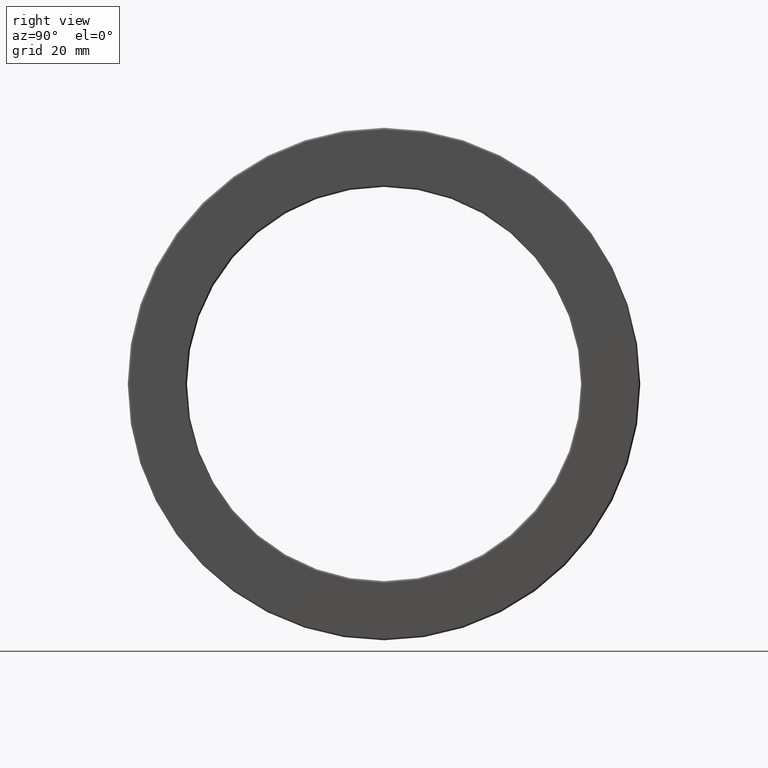
[diagram: clean part render]
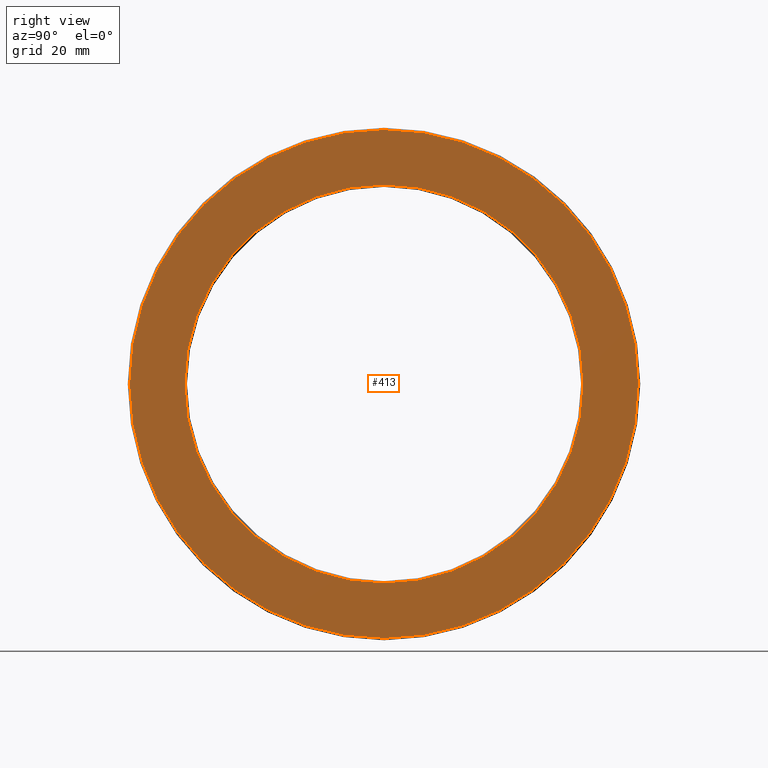
[diagram: same view with one face highlighted and labeled with its STEP entity id]
A machine part, right view. The second image highlights one B-rep face of the part: STEP entity #413.
In plain terms, the highlighted planar face has unit normal (1, 0, 0).
Its self-contained STEP definition (entity closure, byte-faithful):
#53 = AXIS2_PLACEMENT_3D ( 'NONE', #552, #352, #156 ) ;
#139 = EDGE_CURVE ( 'NONE', #140, #140, #269, .T. ) ;
#140 = VERTEX_POINT ( 'NONE', #294 ) ;
#156 = DIRECTION ( 'NONE',  ( 0.0000000000000000000, 0.0000000000000000000, 1.000000000000000000 ) ) ;
#213 = CARTESIAN_POINT ( 'NONE',  ( 0.4920000000000002700, 0.0000000000000000000, 0.0000000000000000000 ) ) ;
#268 = AXIS2_PLACEMENT_3D ( 'NONE', #653, #657, #631 ) ;
#269 = CIRCLE ( 'NONE', #612, 2.539000000000000600 ) ;
#294 = CARTESIAN_POINT ( 'NONE',  ( 0.4920000000000002700, 0.0000000000000000000, 2.539000000000000600 ) ) ;
#352 = DIRECTION ( 'NONE',  ( -1.000000000000000000, -0.0000000000000000000, -0.0000000000000000000 ) ) ;
#358 = FACE_OUTER_BOUND ( 'NONE', #361, .T. ) ;
#361 = EDGE_LOOP ( 'NONE', ( #577 ) ) ;
#413 = ADVANCED_FACE ( 'NONE', ( #672, #358 ), #423, .T. ) ;
#423 = PLANE ( 'NONE',  #268 ) ;
#469 = EDGE_CURVE ( 'NONE', #604, #604, #770, .T. ) ;
#552 = CARTESIAN_POINT ( 'NONE',  ( 0.4920000000000002700, 0.0000000000000000000, 0.0000000000000000000 ) ) ;
#577 = ORIENTED_EDGE ( 'NONE', *, *, #139, .F. ) ;
#592 = ORIENTED_EDGE ( 'NONE', *, *, #469, .T. ) ;
#604 = VERTEX_POINT ( 'NONE', #613 ) ;
#608 = DIRECTION ( 'NONE',  ( 0.0000000000000000000, 0.0000000000000000000, 1.000000000000000000 ) ) ;
#612 = AXIS2_PLACEMENT_3D ( 'NONE', #213, #640, #608 ) ;
#613 = CARTESIAN_POINT ( 'NONE',  ( 0.4920000000000002700, 0.0000000000000000000, 1.988500000000000200 ) ) ;
#631 = DIRECTION ( 'NONE',  ( 0.0000000000000000000, 0.0000000000000000000, -1.000000000000000000 ) ) ;
#640 = DIRECTION ( 'NONE',  ( -1.000000000000000000, -0.0000000000000000000, -0.0000000000000000000 ) ) ;
#653 = CARTESIAN_POINT ( 'NONE',  ( 0.4920000000000002700, 0.0000000000000000000, 0.0000000000000000000 ) ) ;
#657 = DIRECTION ( 'NONE',  ( 1.000000000000000000, 0.0000000000000000000, 0.0000000000000000000 ) ) ;
#672 = FACE_BOUND ( 'NONE', #807, .T. ) ;
#770 = CIRCLE ( 'NONE', #53, 1.988500000000000200 ) ;
#807 = EDGE_LOOP ( 'NONE', ( #592 ) ) ;